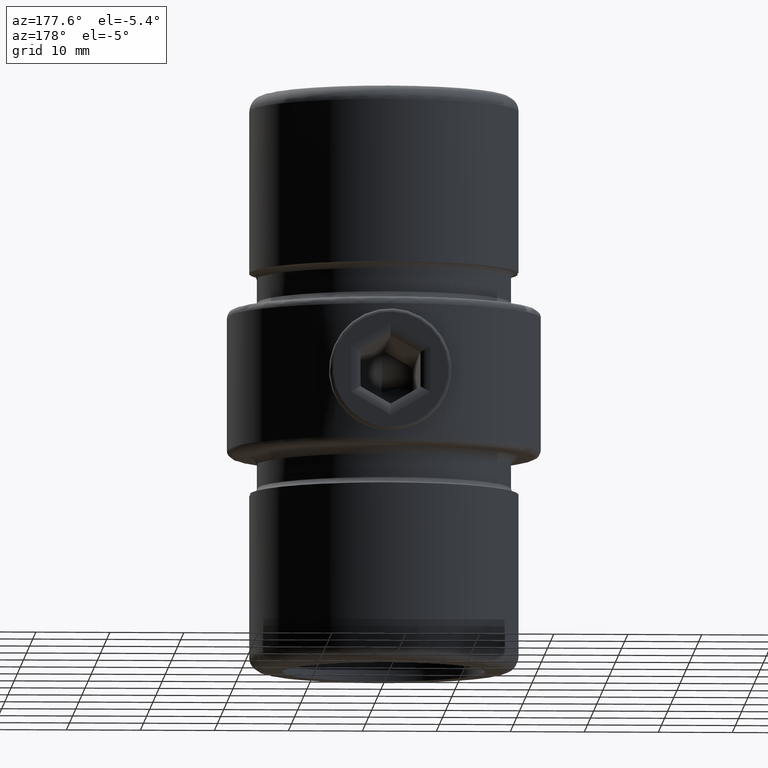
[diagram: clean part render]
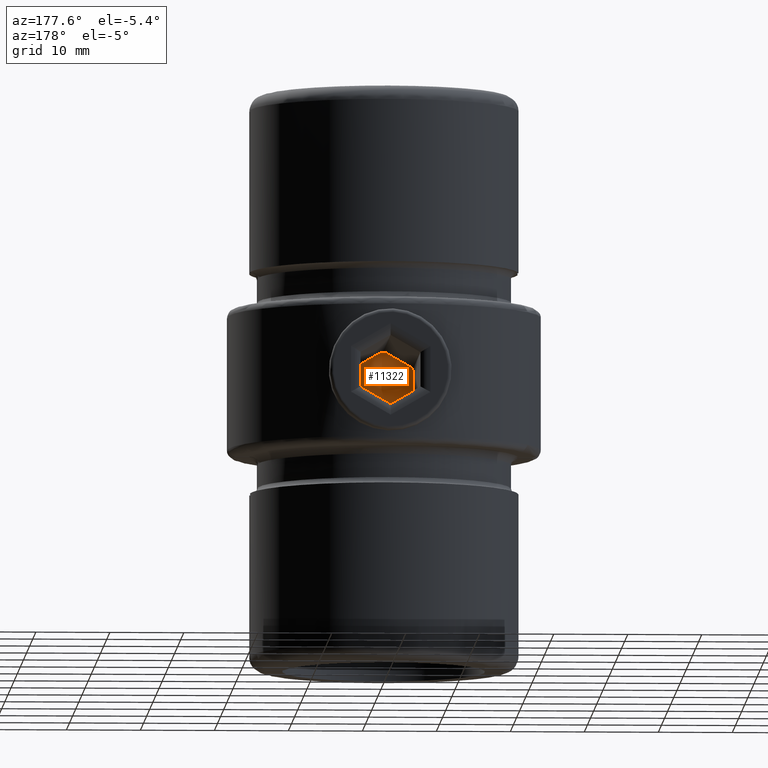
[diagram: same view with one face highlighted and labeled with its STEP entity id]
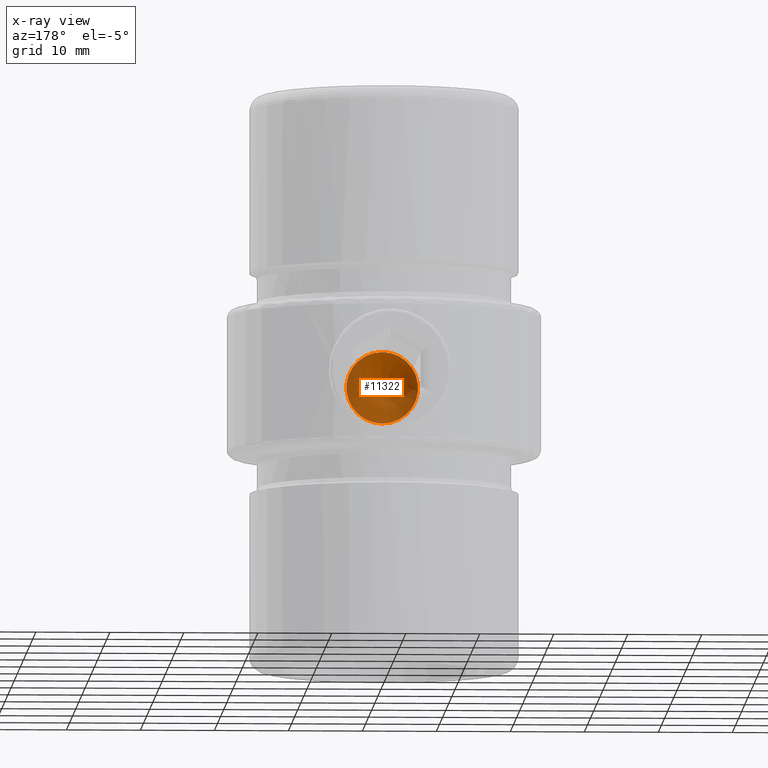
[diagram: x-ray of the same camera — body ghosted, the highlighted face saturated]
A machine part, auxiliary view. The second image highlights one B-rep face of the part: STEP entity #11322.
The next image is the same camera in x-ray: the body ghosted, the highlighted face saturated — about 47% of this face is hidden behind the body in this view.
In plain terms, the highlighted conical surface has half-angle 62 deg.
Its self-contained STEP definition (entity closure, byte-faithful):
#900 = DIRECTION ( 'NONE',  ( 0.000000000000000000, 0.000000000000000000, -1.000000000000000000 ) ) ;
#2038 = AXIS2_PLACEMENT_3D ( 'NONE', #4249, #4118, #3255 ) ;
#3255 = DIRECTION ( 'NONE',  ( 0.000000000000000000, 0.000000000000000000, -1.000000000000000000 ) ) ;
#3721 = ORIENTED_EDGE ( 'NONE', *, *, #4906, .T. ) ;
#3797 = FACE_OUTER_BOUND ( 'NONE', #11725, .T. ) ;
#4118 = DIRECTION ( 'NONE',  ( -0.000000000000000000, -1.000000000000000000, -0.000000000000000000 ) ) ;
#4249 = CARTESIAN_POINT ( 'NONE',  ( 0.000000000000000000, 3.005264371075668794, 0.000000000000000000 ) ) ;
#4354 = CONICAL_SURFACE ( 'NONE', #2038, 7.499999999999976019, 1.082104136236490266 ) ;
#4906 = EDGE_CURVE ( 'NONE', #7935, #7935, #9806, .T. ) ;
#5975 = AXIS2_PLACEMENT_3D ( 'NONE', #8237, #6358, #900 ) ;
#6358 = DIRECTION ( 'NONE',  ( -0.000000000000000000, -1.000000000000000000, -0.000000000000000000 ) ) ;
#6855 = CARTESIAN_POINT ( 'NONE',  ( 0.000000000000000000, 4.415699240232489942, -4.847357813929416004 ) ) ;
#7935 = VERTEX_POINT ( 'NONE', #6855 ) ;
#8237 = CARTESIAN_POINT ( 'NONE',  ( 0.000000000000000000, 4.415699240232489942, 0.000000000000000000 ) ) ;
#9806 = CIRCLE ( 'NONE', #5975, 4.847357813929416004 ) ;
#11322 = ADVANCED_FACE ( 'NONE', ( #3797 ), #4354, .F. ) ;
#11725 = EDGE_LOOP ( 'NONE', ( #3721 ) ) ;